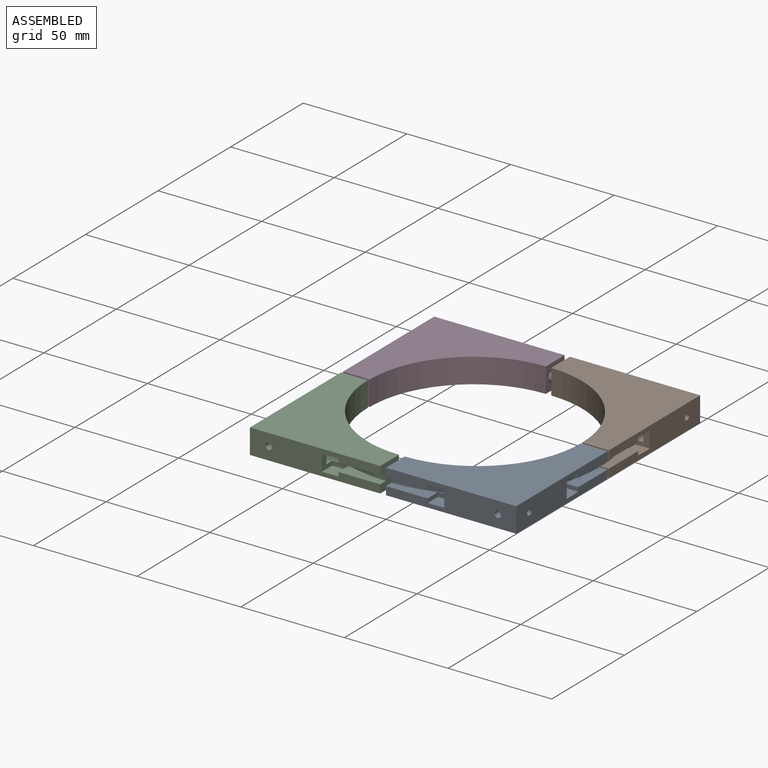
[diagram: assembled view]
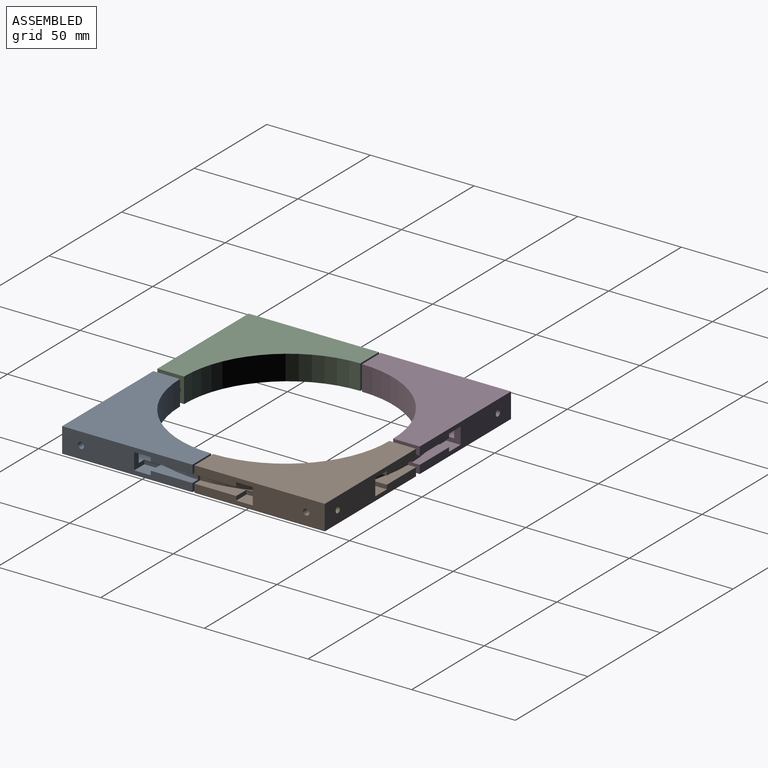
[diagram: assembled view, second angle]
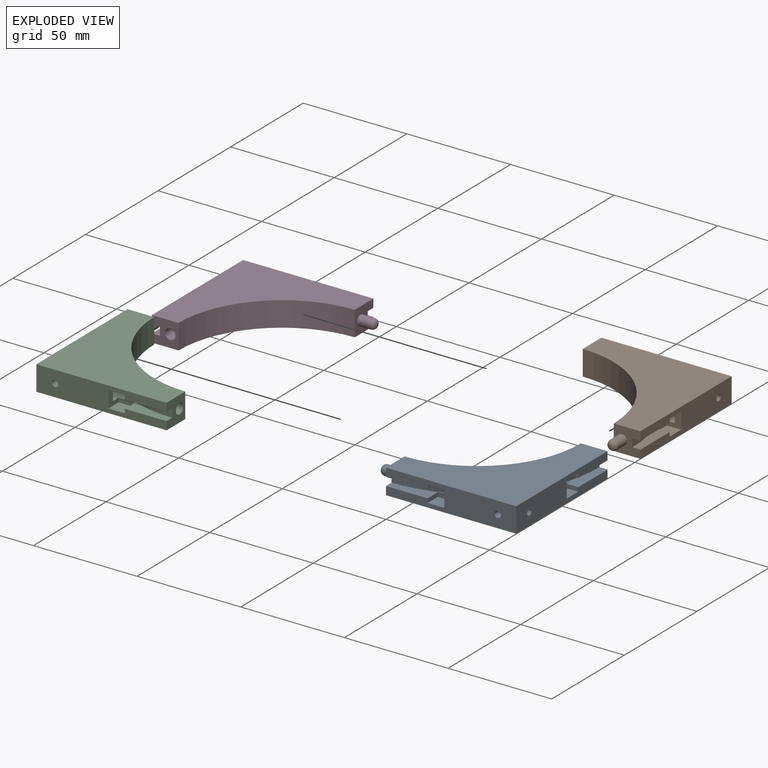
[diagram: exploded view]
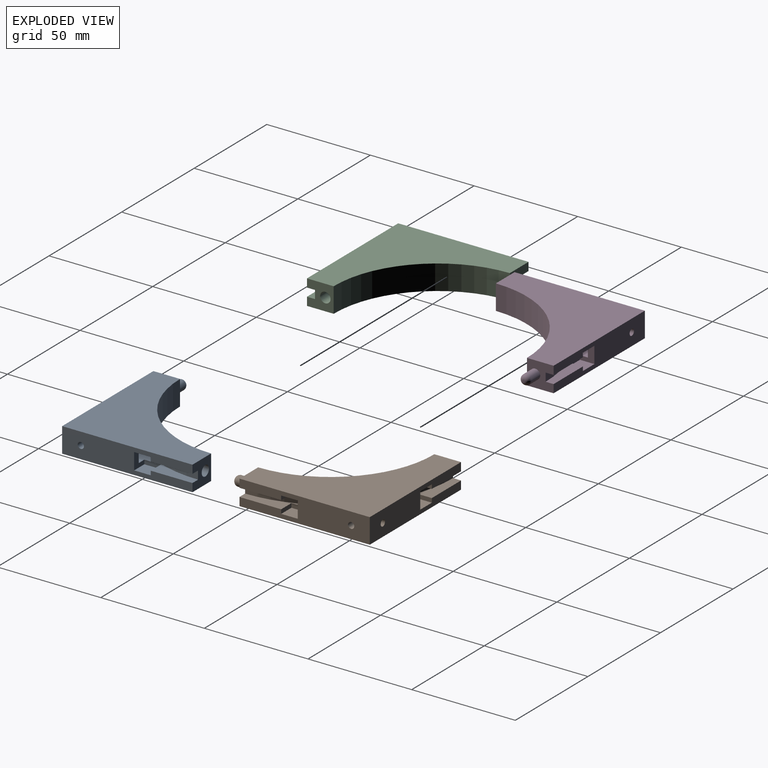
[diagram: exploded view, second angle]
ASSEMBLY  parts=4 mates=3
PART A: 34 faces, bbox 70.9x62.9x12 mm
  f0: plane 62.86x62.86mm, normal (0,0,1), area 514.1mm2, adj f2,f3,f4,f5,f6,f9,f17,f19
  f1: plane 62.86x62.86mm, normal (0,0,-1), area 514.1mm2, adj f2,f3,f4,f5,f6,f9,f15,f16
  f2: cylinder r=66mm len=31.59mm, axis (0,0,-1), area 182.3mm2, adj f0,f1,f19,f28
  f3: plane 12.86x12mm, normal (-1,0,0), area 120.8mm2, adj f0,f1,f4,f7,f8,f9,f10,f11
  f4: plane 62.86x12mm, normal (0,-1,0), area 602.7mm2, adj f0,f1,f3,f5,f8,f10,f15,f17
  f5: plane 62.86x12mm, normal (1,0,0), area 602.7mm2, adj f0,f1,f4,f6,f8,f10,f24,f26
  f6: plane 12.86x12mm, normal (0,1,0), area 119.2mm2, adj f0,f1,f5,f7,f8,f9,f10,f13
  f7: cylinder r=50mm len=50mm, axis (0,0,1), area 942.5mm2, adj f3,f6,f8,f10
  f8: plane 62.86x62.86mm, normal (0,0,-1), area 1987.6mm2, adj f3,f4,f5,f6,f7
  f9: cylinder r=59mm len=59mm, axis (0,0,-1), area 370.7mm2, adj f0,f1,f3,f6
  f10: plane 62.86x62.86mm, normal (0,0,1), area 1987.6mm2, adj f3,f4,f5,f6,f7
  f11: cylinder r=2.4mm len=6mm, axis (1,0,0), area 90.5mm2, adj f3,f33
  f12: plane 0.8x0.8mm, normal (-1,0,0), area 0.5mm2, adj f33
  f13: cylinder r=2.5mm len=10mm, axis (0,1,0), area 157.1mm2, adj f6,f14
  f14: plane 5x5mm, normal (0,1,0), area 19.6mm2, adj f13
  f15: plane 7x2mm, normal (1,0,0), area 14mm2, adj f1,f4,f16,f20
  f16: plane 8x2mm, normal (0,-1,0), area 16mm2, adj f1,f15,f19,f20
  f17: plane 7x2mm, normal (1,0,0), area 14mm2, adj f0,f4,f18,f21
  f18: plane 8x7mm, normal (0,0,1), area 56mm2, adj f4,f17,f19,f21
  f19: plane 8x7mm, normal (-1,0,0), area 40.6mm2, adj f0,f1,f2,f4,f16,f18,f20,f21
  f20: plane 8x7mm, normal (0,0,-1), area 56mm2, adj f4,f15,f16,f19
  f21: plane 8x2mm, normal (0,-1,0), area 16mm2, adj f0,f17,f18,f19
  f22: cylinder r=1.5mm len=7mm, axis (0,-1,0), area 66mm2, adj f4,f23
  f23: plane 3x3mm, normal (0,-1,0), area 7.1mm2, adj f22
  f24: plane 7x2mm, normal (0,-1,0), area 14mm2, adj f1,f5,f25,f27
  f25: plane 8x2mm, normal (1,0,0), area 16mm2, adj f1,f24,f27,f28
  f26: plane 7x2mm, normal (0,-1,0), area 14mm2, adj f0,f5,f29,f30
  f27: plane 8x7mm, normal (0,0,-1), area 56mm2, adj f5,f24,f25,f28
  f28: plane 8x7mm, normal (0,1,0), area 40.6mm2, adj f0,f1,f2,f5,f25,f27,f29,f30
  f29: plane 8x7mm, normal (0,0,1), area 56mm2, adj f5,f26,f28,f30
  f30: plane 8x2mm, normal (1,0,0), area 16mm2, adj f0,f26,f28,f29
  f31: cylinder r=1.5mm len=8mm, axis (1,0,0), area 75.4mm2, adj f5,f32
  f32: plane 3x3mm, normal (1,0,0), area 7.1mm2, adj f31
  f33: torus R=0.4mm, axis (-1,0,0), area 33mm2, adj f11,f12
PART B: same geometry as A
PART C: same geometry as A
PART D: same geometry as A
PLACE A t=(-9.57,26.55,-9.05)mm fixed
PLACE B rot(axis=(0,0,1),90deg) t=(-9.57,27.53,-9.05)mm
PLACE C rot(axis=(0,0,-1),90deg) t=(-12.33,26.55,-9.05)mm
PLACE D rot(axis=(0,0,1),180deg) t=(-12.14,27.53,-9.05)mm
MATE slider B.f6 <-> D.f3  axis (-1,0,0) through (-9.57,83.96,-1.05)mm
MATE slider A.f6 <-> B.f3  axis (0,1,0) through (46.86,26.55,-13.05)mm
MATE slider C.f6 <-> A.f3  axis (1,0,0) through (-12.33,-29.88,-13.05)mm
